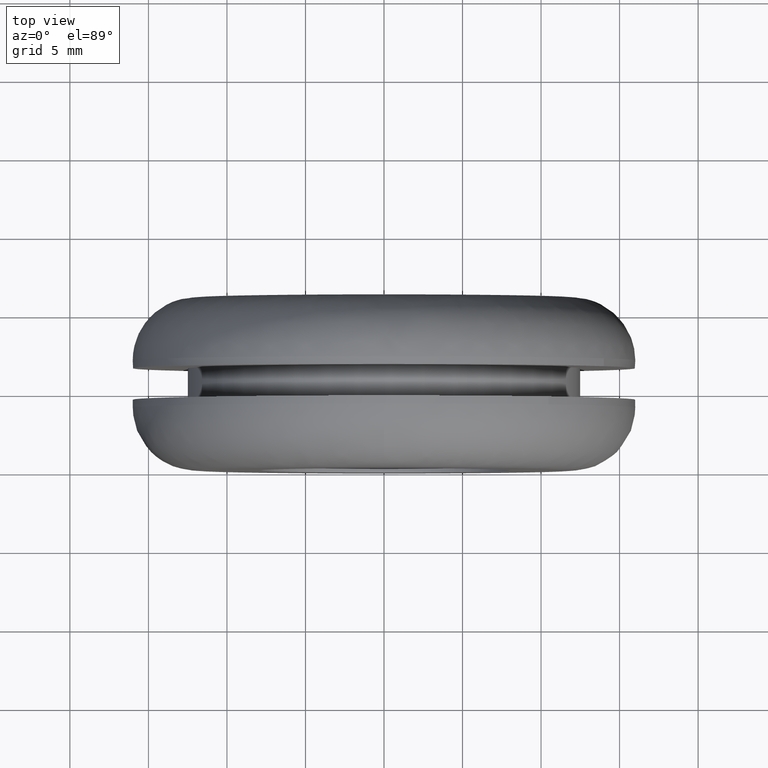
[diagram: clean part render]
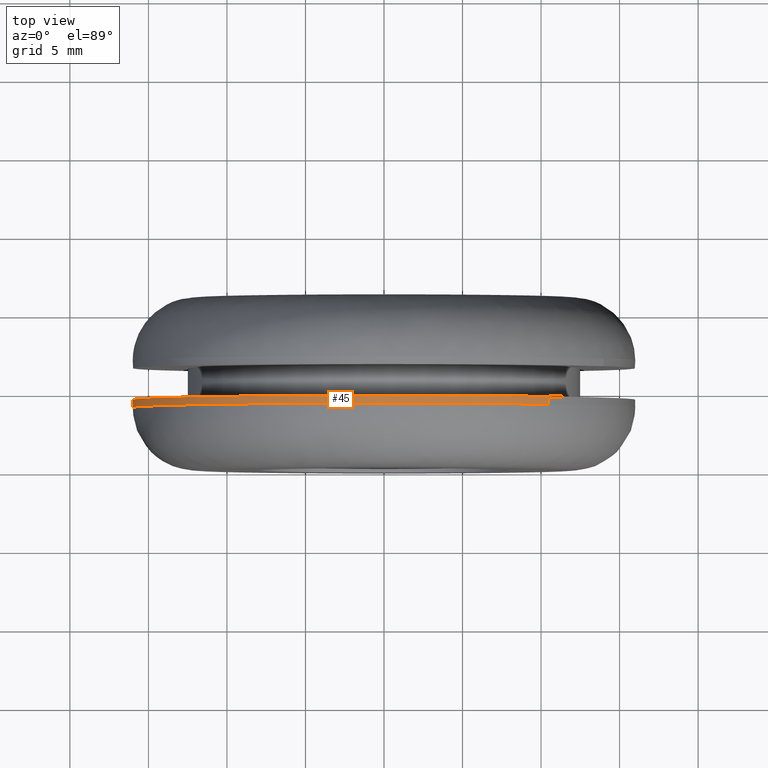
[diagram: same view with one face highlighted and labeled with its STEP entity id]
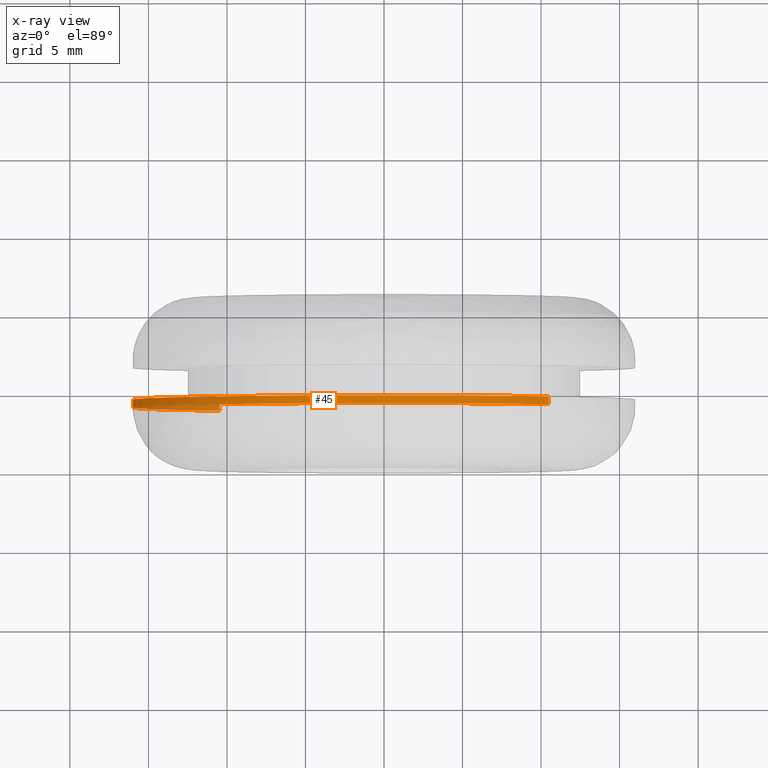
[diagram: x-ray of the same camera — body ghosted, the highlighted face saturated]
A machine part, top view. The second image highlights one B-rep face of the part: STEP entity #45.
The next image is the same camera in x-ray: the body ghosted, the highlighted face saturated — about 11% of this face is hidden behind the body in this view.
In plain terms, the highlighted cylindrical surface (partial cylindrical patch) has radius 16 mm, axis along (-0, 1, 0).
Its self-contained STEP definition (entity closure, byte-faithful):
#45=ADVANCED_FACE('',(#111),#110,.T.);
#110=CYLINDRICAL_SURFACE('',#252,1.60000000000E+001);
#111=FACE_OUTER_BOUND('',#253,.T.);
#249=CARTESIAN_POINT('',(-3.55271367880E-015,4.51250000000E+000,-1.24900090270E-015));
#250=DIRECTION('',(-0.00000000000E+000,1.00000000000E+000,0.00000000000E+000));
#251=DIRECTION('',(6.54339657003E-001,-0.00000000000E+000,7.56200775769E-001));
#252=AXIS2_PLACEMENT_3D('',#249,#250,#251);
#253=EDGE_LOOP('',(#417,#418,#419,#420,#421,#422,#423));
#417=ORIENTED_EDGE('',*,*,#512,.F.);
#418=ORIENTED_EDGE('',*,*,#513,.F.);
#419=ORIENTED_EDGE('',*,*,#514,.F.);
#420=ORIENTED_EDGE('',*,*,#507,.T.);
#421=ORIENTED_EDGE('',*,*,#484,.T.);
#422=ORIENTED_EDGE('',*,*,#486,.T.);
#423=ORIENTED_EDGE('',*,*,#511,.F.);
#484=EDGE_CURVE('',#532,#533,#534,.T.);
#486=EDGE_CURVE('',#533,#540,#547,.T.);
#507=EDGE_CURVE('',#693,#532,#694,.T.);
#511=EDGE_CURVE('',#714,#540,#721,.T.);
#512=EDGE_CURVE('',#727,#714,#728,.T.);
#513=EDGE_CURVE('',#734,#727,#735,.T.);
#514=EDGE_CURVE('',#693,#734,#741,.T.);
#532=VERTEX_POINT('',#856);
#533=VERTEX_POINT('',#857);
#534=CIRCLE('',#861,1.60000008999E+001);
#540=VERTEX_POINT('',#862);
#547=CIRCLE('',#870,1.60000008999E+001);
#693=VERTEX_POINT('',#971);
#694=(BOUNDED_CURVE() B_SPLINE_CURVE(1,(#972,#973),.UNSPECIFIED.,.F.,.F.) B_SPLINE_CURVE_WITH_KNOTS((2,2),(8.33334128067E-002,9.16666680514E-001),.UNSPECIFIED.) CURVE() GEOMETRIC_REPRESENTATION_ITEM() RATIONAL_B_SPLINE_CURVE((1.00000000000E+000,1.00000000000E+000)) REPRESENTATION_ITEM('') );
#714=VERTEX_POINT('',#984);
#721=(BOUNDED_CURVE() B_SPLINE_CURVE(1,(#989,#990),.UNSPECIFIED.,.F.,.F.) B_SPLINE_CURVE_WITH_KNOTS((2,2),(8.33333333571E-002,9.16666666666E-001),.UNSPECIFIED.) CURVE() GEOMETRIC_REPRESENTATION_ITEM() RATIONAL_B_SPLINE_CURVE((7.50000000000E-001,7.50000000000E-001)) REPRESENTATION_ITEM('') );
#727=VERTEX_POINT('',#991);
#728=CIRCLE('',#995,1.59999993462E+001);
#734=VERTEX_POINT('',#996);
#735=CIRCLE('',#1000,1.60000011083E+001);
#741=CIRCLE('',#1004,1.60000000000E+001);
#856=CARTESIAN_POINT('',(1.04694356897E+001,4.50000000000E+000,1.20992137733E+001));
#857=CARTESIAN_POINT('',(-1.08094435913E+001,4.50000000000E+000,1.17964389553E+001));
#858=CARTESIAN_POINT('',(3.35294472187E-007,4.50000000000E+000,8.99906341445E-007));
#859=DIRECTION('',(3.98764657886E-016,-1.00000000000E+000,1.80803436585E-014));
#860=DIRECTION('',(-6.75590207414E-001,1.30608261265E-014,7.37277336995E-001));
#861=AXIS2_PLACEMENT_3D('',#858,#859,#860);
#862=CARTESIAN_POINT('',(-1.04690751678E+001,4.50000000000E+000,-1.20995233431E+001));
#867=CARTESIAN_POINT('',(3.35294472187E-007,4.50000000000E+000,8.99906341445E-007));
#868=DIRECTION('',(3.98764657886E-016,-1.00000000000E+000,1.80803436585E-014));
#869=DIRECTION('',(-6.75590207414E-001,1.30608261265E-014,7.37277336995E-001));
#870=AXIS2_PLACEMENT_3D('',#867,#868,#869);
#971=CARTESIAN_POINT('',(1.04694345120E+001,4.00000000174E+000,1.20992124123E+001));
#972=CARTESIAN_POINT('',(1.04694345120E+001,4.00000004766E+000,1.20992124123E+001));
#973=CARTESIAN_POINT('',(1.04694345120E+001,4.50000000831E+000,1.20992124123E+001));
#984=CARTESIAN_POINT('',(-1.04694339899E+001,4.00000000000E+000,-1.20992128641E+001));
#989=CARTESIAN_POINT('',(-1.04694345120E+001,3.99999999999E+000,-1.20992124123E+001));
#990=CARTESIAN_POINT('',(-1.04694345120E+001,4.50000000000E+000,-1.20992124123E+001));
#991=CARTESIAN_POINT('',(-1.59949470285E+001,3.99999999997E+000,4.02081527098E-001));
#992=CARTESIAN_POINT('',(-6.61346026831E-007,3.99999999984E+000,-2.92311801431E-007));
#993=DIRECTION('',(-1.15876864877E-011,-1.00000000000E+000,-1.43106282104E-010));
#994=DIRECTION('',(9.99684188798E-001,-7.98774967724E-012,-2.51301147400E-002));
#995=AXIS2_PLACEMENT_3D('',#992,#993,#994);
#996=CARTESIAN_POINT('',(0.00000000000E+000,4.00000000000E+000,1.60000000000E+001));
#997=CARTESIAN_POINT('',(4.31013543967E-007,3.99999999997E+000,-1.10834793432E-006));
#998=DIRECTION('',(-5.74002758307E-028,-1.00000000000E+000,1.82792657227E-012));
#999=DIRECTION('',(2.69383446319E-008,-1.82792657227E-012,-1.00000000000E+000));
#1000=AXIS2_PLACEMENT_3D('',#997,#998,#999);
#1001=CARTESIAN_POINT('',(2.66453525910E-015,3.99999999995E+000,9.76996261670E-015));
#1002=DIRECTION('',(4.79088028495E-012,-1.00000000000E+000,1.43277140451E-010));
#1003=DIRECTION('',(-9.99684189283E-001,-1.18879905919E-012,2.51300954436E-002));
#1004=AXIS2_PLACEMENT_3D('',#1001,#1002,#1003);